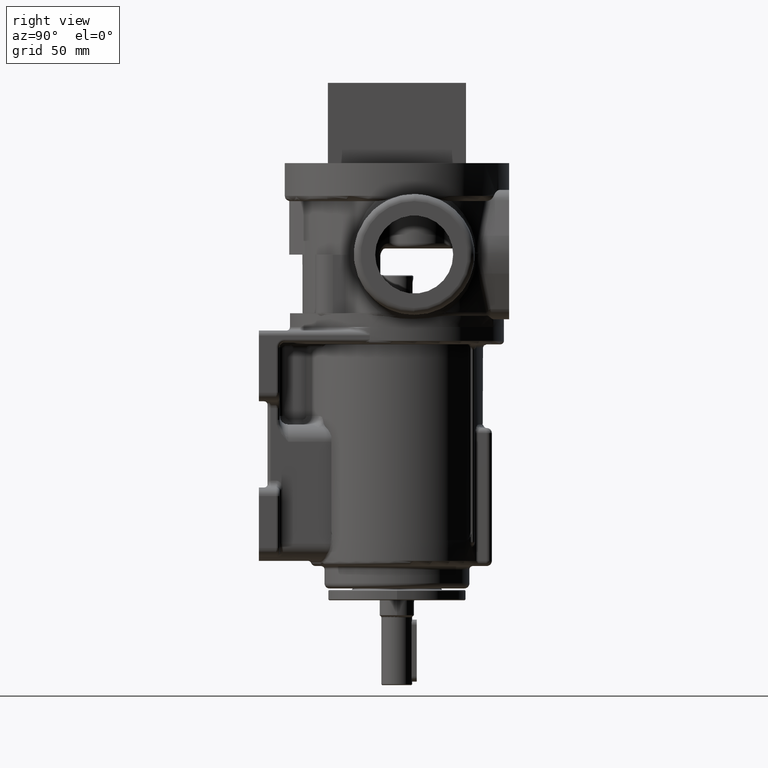
[diagram: clean part render]
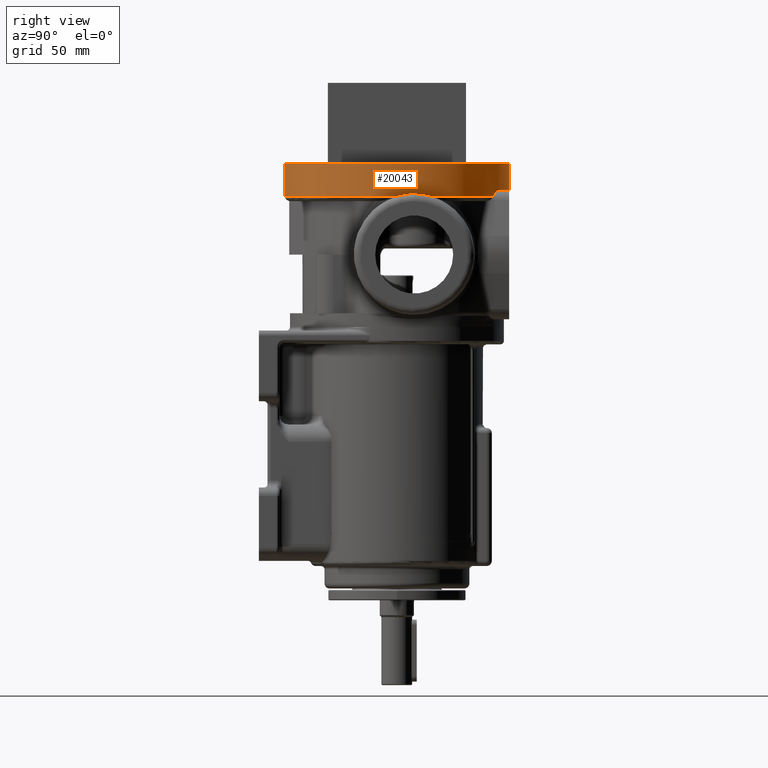
[diagram: same view with one face highlighted and labeled with its STEP entity id]
A machine part, right view. The second image highlights one B-rep face of the part: STEP entity #20043.
In plain terms, the highlighted cylindrical surface (partial cylindrical patch) has radius 65 mm, axis along (0, 0, 1).
Its self-contained STEP definition (entity closure, byte-faithful):
#5342=CARTESIAN_POINT('',(0.E0,0.E0,7.95E1));
#5343=DIRECTION('',(0.E0,0.E0,1.E0));
#5344=DIRECTION('',(4.048198366154E-1,9.143964675581E-1,0.E0));
#5345=AXIS2_PLACEMENT_3D('',#5342,#5343,#5344);
#5351=CARTESIAN_POINT('',(0.E0,0.E0,7.6E1));
#5352=DIRECTION('',(0.E0,0.E0,-1.E0));
#5353=DIRECTION('',(5.065795024256E-1,8.621932542779E-1,0.E0));
#5354=AXIS2_PLACEMENT_3D('',#5351,#5352,#5353);
#5356=CARTESIAN_POINT('',(0.E0,0.E0,7.6E1));
#5357=DIRECTION('',(0.E0,0.E0,-1.E0));
#5358=DIRECTION('',(9.999657895294E-1,8.271624434122E-3,0.E0));
#5359=AXIS2_PLACEMENT_3D('',#5356,#5357,#5358);
#5361=DIRECTION('',(0.E0,0.E0,-1.E0));
#5362=VECTOR('',#5361,1.9E1);
#5363=CARTESIAN_POINT('',(0.E0,-6.5E1,9.5E1));
#5364=LINE('',#5363,#5362);
#5365=CARTESIAN_POINT('',(0.E0,0.E0,9.5E1));
#5366=DIRECTION('',(0.E0,0.E0,-1.E0));
#5367=DIRECTION('',(0.E0,1.E0,0.E0));
#5368=AXIS2_PLACEMENT_3D('',#5365,#5366,#5367);
#5370=DIRECTION('',(0.E0,0.E0,-1.E0));
#5371=VECTOR('',#5370,1.55E1);
#5372=CARTESIAN_POINT('',(0.E0,6.5E1,9.5E1));
#5373=LINE('',#5372,#5371);
#5374=CARTESIAN_POINT('',(3.292766765766E1,5.604256152806E1,7.6E1));
#5375=CARTESIAN_POINT('',(3.286219879907E1,5.608102759312E1,7.609623017692E1));
#5376=CARTESIAN_POINT('',(3.272644488317E1,5.616048128879E1,7.628674076729E1));
#5377=CARTESIAN_POINT('',(3.250826873681E1,5.628707688642E1,7.656601119036E1));
#5378=CARTESIAN_POINT('',(3.227583553002E1,5.642070374715E1,7.683769865118E1));
#5379=CARTESIAN_POINT('',(3.202927489976E1,5.656106293324E1,7.710100468771E1));
#5380=CARTESIAN_POINT('',(3.176885548648E1,5.670776915673E1,7.735501979874E1));
#5381=CARTESIAN_POINT('',(3.149503747724E1,5.686032740522E1,7.759873570788E1));
#5382=CARTESIAN_POINT('',(3.120837120691E1,5.701819665711E1,7.783118377050E1));
#5383=CARTESIAN_POINT('',(3.090927357775E1,5.718091343818E1,7.805157807604E1));
#5384=CARTESIAN_POINT('',(3.059881123774E1,5.734767175392E1,7.825876466813E1));
#5385=CARTESIAN_POINT('',(3.027778318693E1,5.751783341003E1,7.845196374562E1));
#5386=CARTESIAN_POINT('',(2.994651248753E1,5.769102317899E1,7.863071332002E1));
#5387=CARTESIAN_POINT('',(2.960633186010E1,5.786635396493E1,7.879406437564E1));
#5388=CARTESIAN_POINT('',(2.925862659624E1,5.804295232369E1,7.894127091149E1));
#5389=CARTESIAN_POINT('',(2.890412610057E1,5.822031186031E1,7.907200385006E1));
#5390=CARTESIAN_POINT('',(2.854312626038E1,5.839815573111E1,7.918606754344E1));
#5391=CARTESIAN_POINT('',(2.817718122137E1,5.857560919318E1,7.928290263817E1));
#5392=CARTESIAN_POINT('',(2.780784804413E1,5.875184824711E1,7.936217226066E1));
#5393=CARTESIAN_POINT('',(2.743578290395E1,5.892651651289E1,7.942384902188E1));
#5394=CARTESIAN_POINT('',(2.706151671170E1,5.909933147392E1,7.946789789415E1));
#5395=CARTESIAN_POINT('',(2.668668524608E1,5.926952871246E1,7.949420980913E1));
#5396=CARTESIAN_POINT('',(2.643758340819E1,5.938074317937E1,7.95E1));
#5397=CARTESIAN_POINT('',(2.631328938E1,5.943577039127E1,7.95E1));
#8228=CARTESIAN_POINT('',(6.499777631941E1,5.376555882184E-1,7.6E1));
#8229=CARTESIAN_POINT('',(6.499526681892E1,8.410318677682E-1,7.608647648093E1));
#8230=CARTESIAN_POINT('',(6.498598918880E1,1.448960085418E0,7.625060401658E1));
#8231=CARTESIAN_POINT('',(6.495915472272E1,2.364059591714E0,7.647049547880E1));
#8232=CARTESIAN_POINT('',(6.491924553700E1,3.282385536581E0,7.666429067986E1));
#8233=CARTESIAN_POINT('',(6.486618053501E1,4.202711002447E0,7.683193421522E1));
#8234=CARTESIAN_POINT('',(6.479983236559E1,5.125211808887E0,7.697365776425E1));
#8235=CARTESIAN_POINT('',(6.472006318855E1,6.049946968825E0,7.708960057301E1));
#8236=CARTESIAN_POINT('',(6.462665462221E1,6.977560431412E0,7.717988325911E1));
#8237=CARTESIAN_POINT('',(6.451951781633E1,7.907278128718E0,7.724443180600E1));
#8238=CARTESIAN_POINT('',(6.439842976484E1,8.839579634832E0,7.728324933698E1));
#8239=CARTESIAN_POINT('',(6.430831103115E1,9.462591206005E0,7.729190095286E1));
#8240=CARTESIAN_POINT('',(6.426087722855E1,9.774439002705E0,7.729190072264E1));
#8277=CARTESIAN_POINT('',(6.426087722855E1,9.774439002705E0,7.729190072264E1));
#8278=CARTESIAN_POINT('',(6.421432585681E1,1.008048536444E1,7.729190075575E1));
#8279=CARTESIAN_POINT('',(6.411664447781E1,1.069326636488E1,7.728356751722E1));
#8280=CARTESIAN_POINT('',(6.395624950473E1,1.161424590501E1,7.724592647051E1));
#8281=CARTESIAN_POINT('',(6.378182590446E1,1.253690663779E1,7.718297700959E1));
#8282=CARTESIAN_POINT('',(6.359306033746E1,1.346185724908E1,7.709444025904E1));
#8283=CARTESIAN_POINT('',(6.338954045978E1,1.438988929276E1,7.697987879334E1));
#8284=CARTESIAN_POINT('',(6.317112479938E1,1.532042011394E1,7.683893960648E1));
#8285=CARTESIAN_POINT('',(6.293774257039E1,1.625268674891E1,7.667131636929E1));
#8286=CARTESIAN_POINT('',(6.268939566173E1,1.718581632975E1,7.647676936381E1));
#8287=CARTESIAN_POINT('',(6.242562830741E1,1.812062428947E1,7.625465339266E1));
#8288=CARTESIAN_POINT('',(6.223956315129E1,1.874414990670E1,7.608803066699E1));
#8289=CARTESIAN_POINT('',(6.214394471582E1,1.905597373942E1,7.6E1));
#12694=CARTESIAN_POINT('',(0.E0,6.5E1,9.5E1));
#12695=CARTESIAN_POINT('',(0.E0,-6.5E1,9.5E1));
#12696=VERTEX_POINT('',#12694);
#12697=VERTEX_POINT('',#12695);
#12698=CARTESIAN_POINT('',(1.486557011116E-14,-6.5E1,7.6E1));
#12699=VERTEX_POINT('',#12698);
#12736=CARTESIAN_POINT('',(0.E0,6.5E1,7.95E1));
#12738=VERTEX_POINT('',#12736);
#12740=CARTESIAN_POINT('',(2.631328938E1,5.943577039127E1,7.95E1));
#12741=VERTEX_POINT('',#12740);
#12780=VERTEX_POINT('',#5374);
#12814=VERTEX_POINT('',#8277);
#12815=VERTEX_POINT('',#8289);
#12817=VERTEX_POINT('',#8228);
#20019=CARTESIAN_POINT('',(0.E0,0.E0,4.3025E1));
#20020=DIRECTION('',(0.E0,0.E0,1.E0));
#20021=DIRECTION('',(0.E0,-1.E0,0.E0));
#20022=AXIS2_PLACEMENT_3D('',#20019,#20020,#20021);
#20023=CYLINDRICAL_SURFACE('',#20022,6.5E1);
#20024=ORIENTED_EDGE('',*,*,#20011,.F.);
#20026=ORIENTED_EDGE('',*,*,#20025,.F.);
#20028=ORIENTED_EDGE('',*,*,#20027,.T.);
#20030=ORIENTED_EDGE('',*,*,#20029,.F.);
#20032=ORIENTED_EDGE('',*,*,#20031,.F.);
#20034=ORIENTED_EDGE('',*,*,#20033,.T.);
#20036=ORIENTED_EDGE('',*,*,#20035,.F.);
#20038=ORIENTED_EDGE('',*,*,#20037,.F.);
#20040=ORIENTED_EDGE('',*,*,#20039,.T.);
#20041=EDGE_LOOP('',(#20024,#20026,#20028,#20030,#20032,#20034,#20036,#20038,
#20040));
#20042=FACE_OUTER_BOUND('',#20041,.F.);
#20043=ADVANCED_FACE('',(#20042),#20023,.T.);
#5346=CIRCLE('',#5345,6.5E1);
#5355=CIRCLE('',#5354,6.5E1);
#5360=CIRCLE('',#5359,6.5E1);
#5369=CIRCLE('',#5368,6.5E1);
#5398=B_SPLINE_CURVE_WITH_KNOTS('',3,(#5374,#5375,#5376,#5377,#5378,#5379,#5380,
#5381,#5382,#5383,#5384,#5385,#5386,#5387,#5388,#5389,#5390,#5391,#5392,#5393,
#5394,#5395,#5396,#5397),.UNSPECIFIED.,.F.,.F.,(4,1,1,1,1,1,1,1,1,1,1,1,1,1,1,1,
1,1,1,1,1,4),(0.E0,4.761904761905E-2,9.523809523810E-2,1.428571428571E-1,
1.904761904762E-1,2.380952380952E-1,2.857142857143E-1,3.333333333333E-1,
3.809523809524E-1,4.285714285714E-1,4.761904761905E-1,5.238095238095E-1,
5.714285714286E-1,6.190476190476E-1,6.666666666667E-1,7.142857142857E-1,
7.619047619048E-1,8.095238095238E-1,8.571428571429E-1,9.047619047619E-1,
9.523809523810E-1,1.E0),.UNSPECIFIED.);
#8241=B_SPLINE_CURVE_WITH_KNOTS('',3,(#8228,#8229,#8230,#8231,#8232,#8233,#8234,
#8235,#8236,#8237,#8238,#8239,#8240),.UNSPECIFIED.,.F.,.F.,(4,1,1,1,1,1,1,1,1,1,
4),(0.E0,1.E-1,2.E-1,3.E-1,4.E-1,5.E-1,6.E-1,7.E-1,8.E-1,9.E-1,1.E0),
.UNSPECIFIED.);
#8290=B_SPLINE_CURVE_WITH_KNOTS('',3,(#8277,#8278,#8279,#8280,#8281,#8282,#8283,
#8284,#8285,#8286,#8287,#8288,#8289),.UNSPECIFIED.,.F.,.F.,(4,1,1,1,1,1,1,1,1,1,
4),(0.E0,1.E-1,2.E-1,3.E-1,4.E-1,5.E-1,6.E-1,7.E-1,8.E-1,9.E-1,1.E0),
.UNSPECIFIED.);
#20011=EDGE_CURVE('',#12741,#12738,#5346,.T.);
#20025=EDGE_CURVE('',#12780,#12741,#5398,.T.);
#20027=EDGE_CURVE('',#12780,#12815,#5355,.T.);
#20029=EDGE_CURVE('',#12814,#12815,#8290,.T.);
#20031=EDGE_CURVE('',#12817,#12814,#8241,.T.);
#20033=EDGE_CURVE('',#12817,#12699,#5360,.T.);
#20035=EDGE_CURVE('',#12697,#12699,#5364,.T.);
#20037=EDGE_CURVE('',#12696,#12697,#5369,.T.);
#20039=EDGE_CURVE('',#12696,#12738,#5373,.T.);